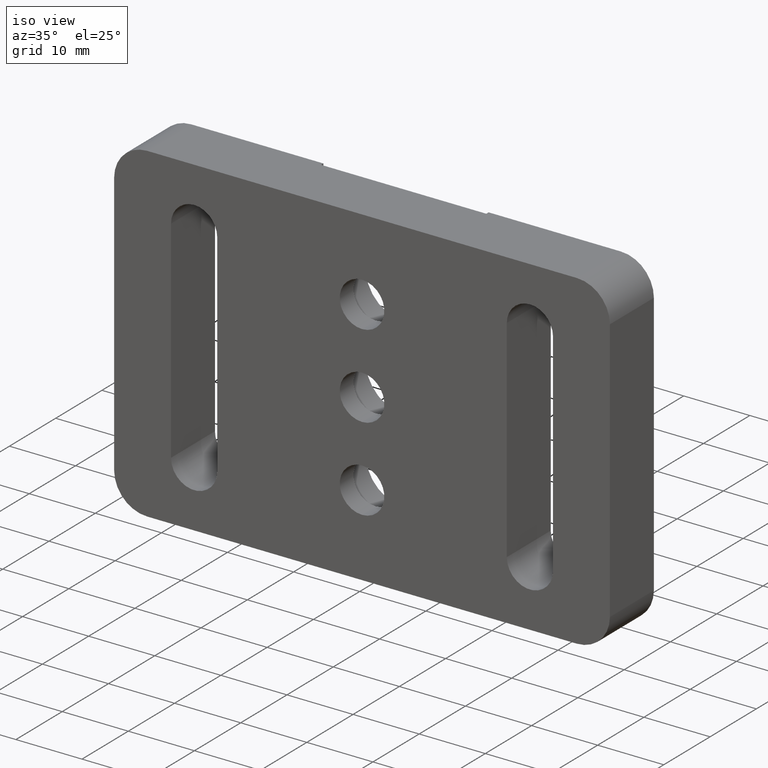
[diagram: clean part render]
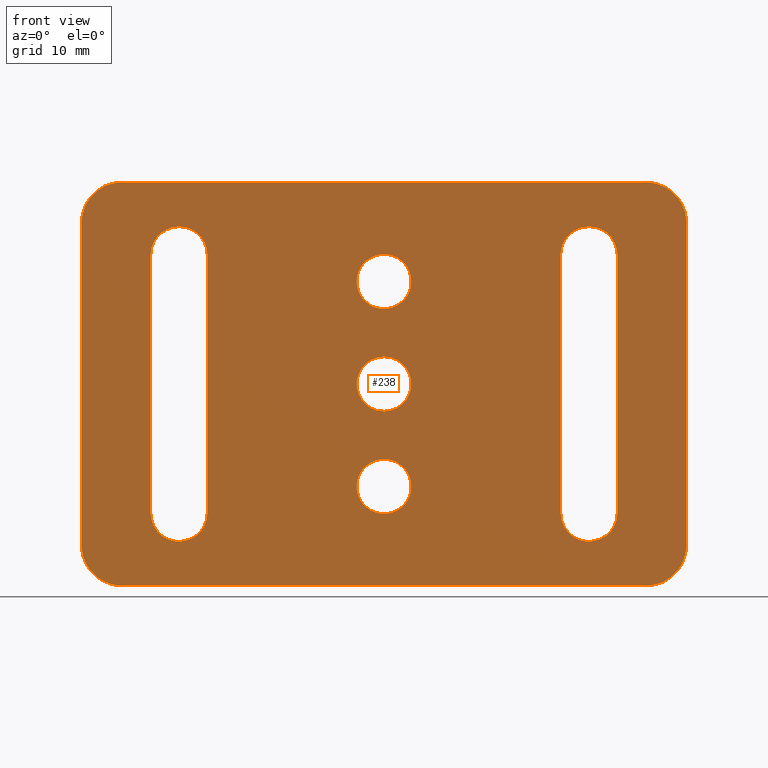
[diagram: tour spotlight — one face highlighted and labeled with its STEP entity id]
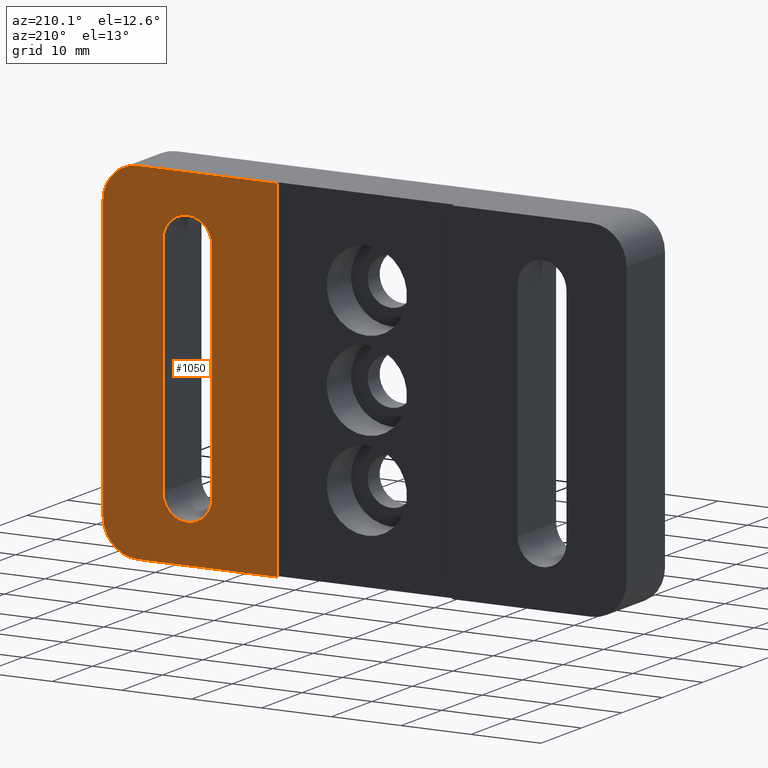
[diagram: tour spotlight — one face highlighted and labeled with its STEP entity id]
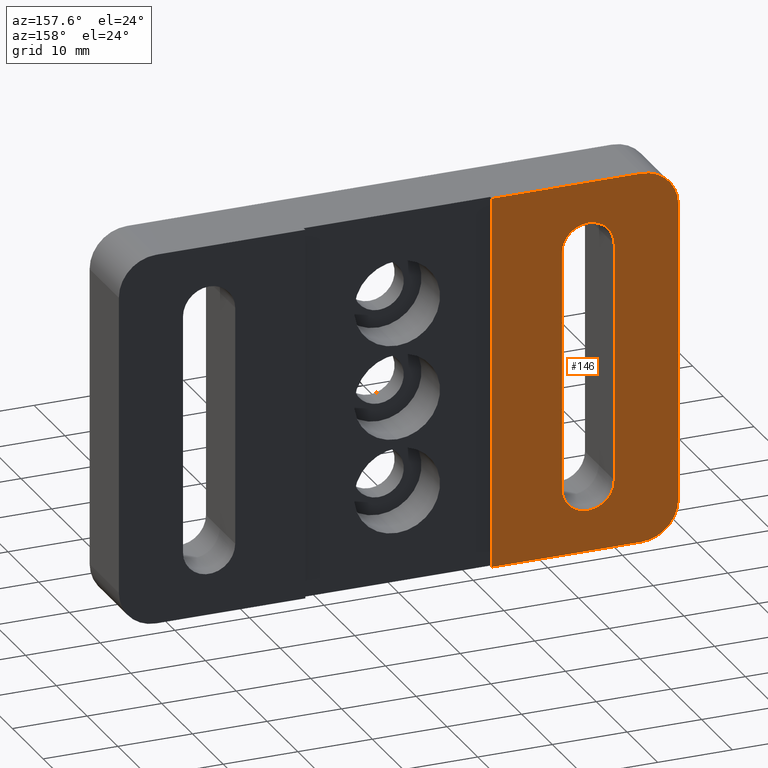
[diagram: tour spotlight — one face highlighted and labeled with its STEP entity id]
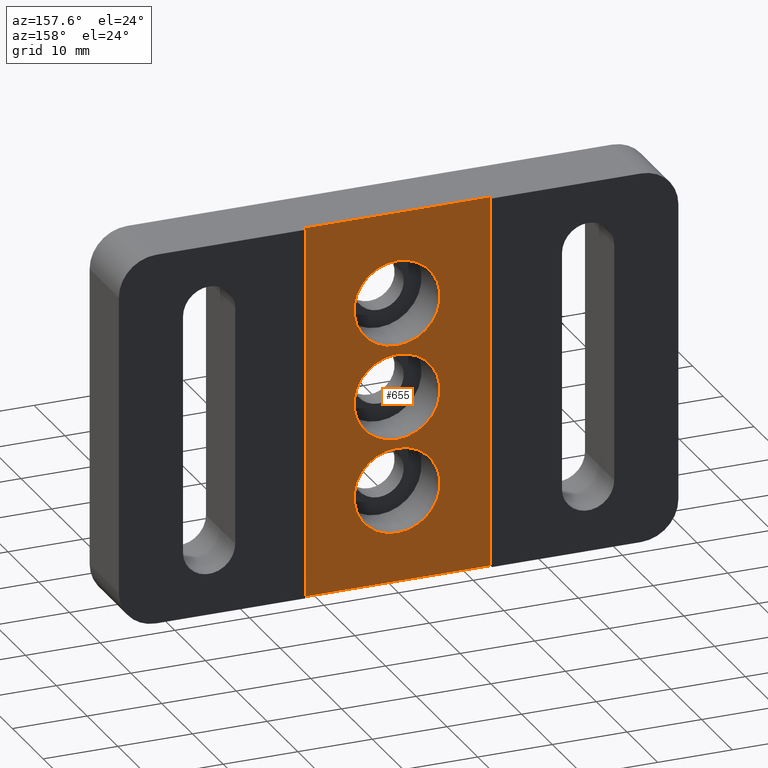
[diagram: tour spotlight — one face highlighted and labeled with its STEP entity id]
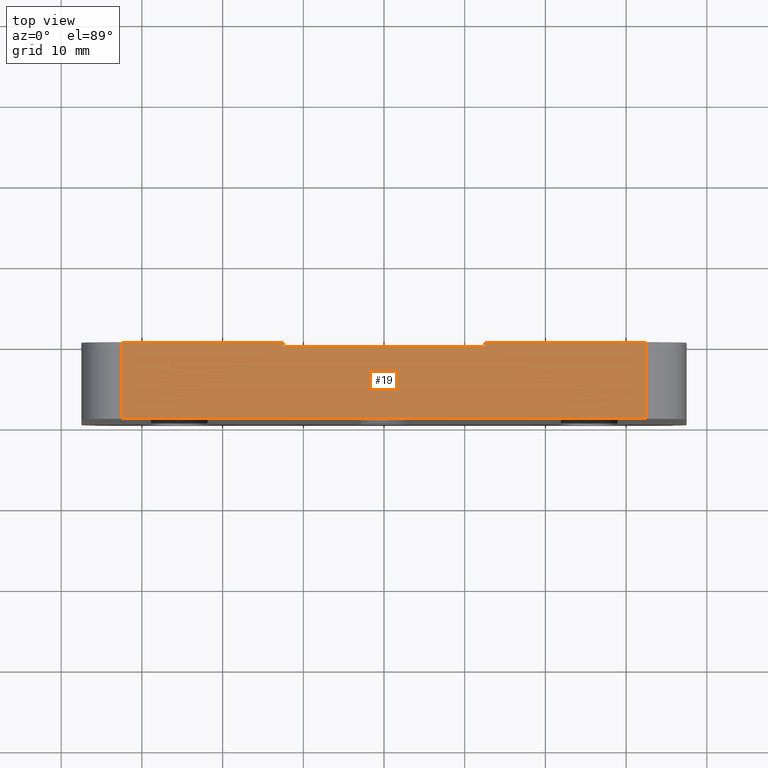
[diagram: tour spotlight — one face highlighted and labeled with its STEP entity id]
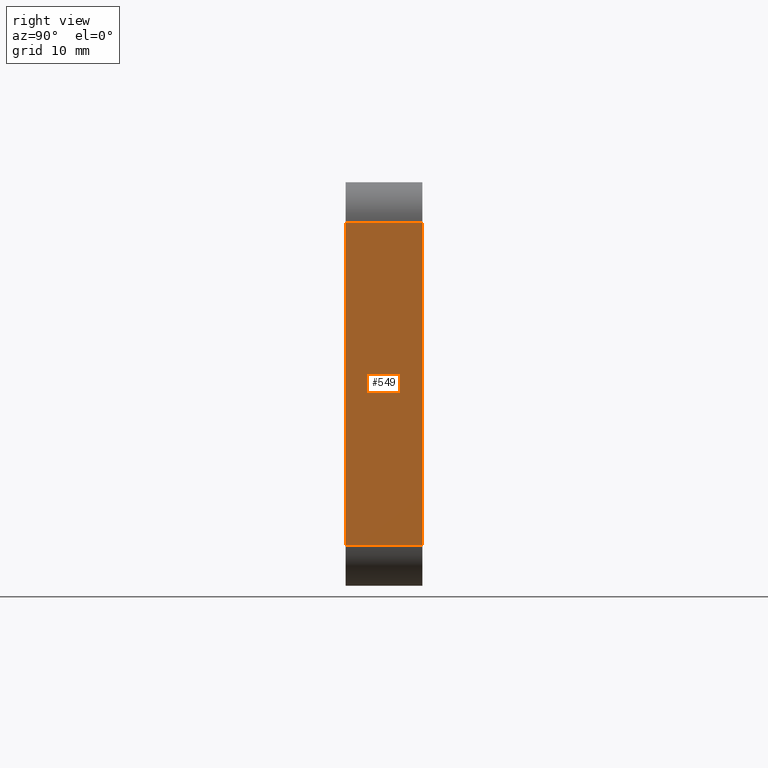
[diagram: tour spotlight — one face highlighted and labeled with its STEP entity id]
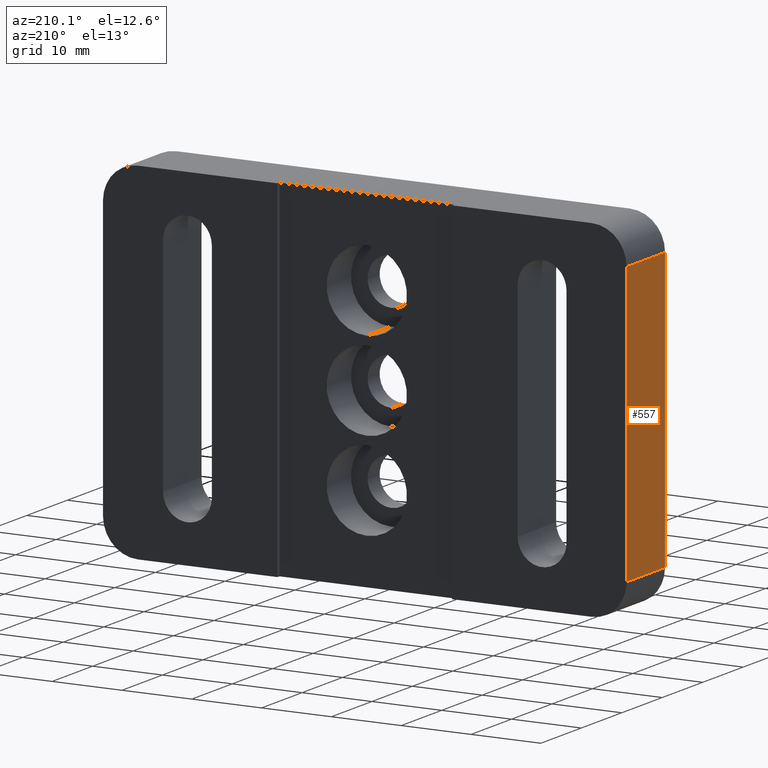
[diagram: tour spotlight — one face highlighted and labeled with its STEP entity id]
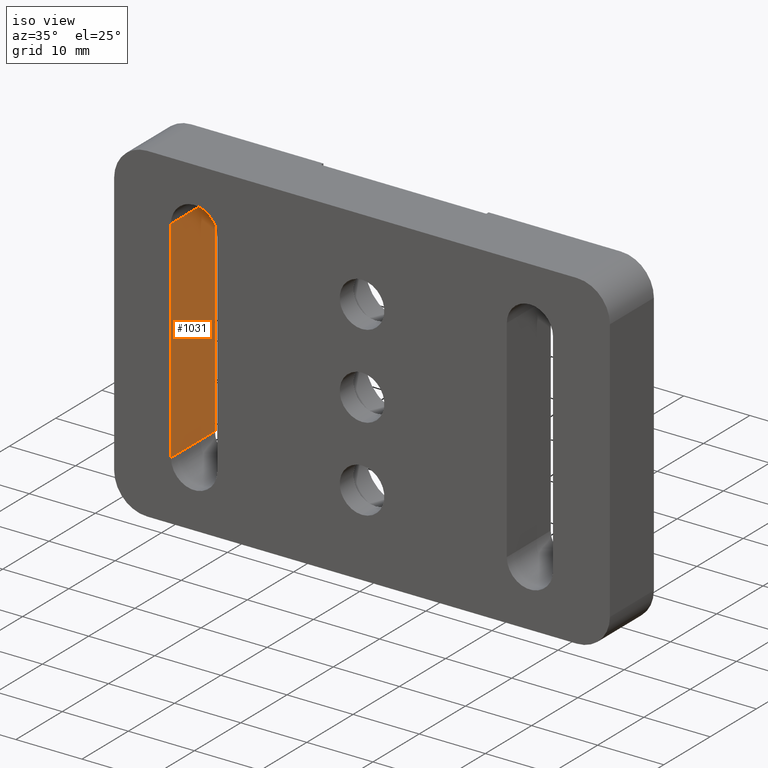
[diagram: tour spotlight — one face highlighted and labeled with its STEP entity id]
A machine part: a face-by-face anatomy tour. The part has 39 B-rep faces; the first image is the clean iso view, then the 8 largest visible faces are spotlighted one at a time (largest first), each with its STEP entity span.

Face 1 — front view, entity #238. In plain terms, the highlighted planar face has unit normal (0, 1, -0).
Definition (entity closure, byte-faithful):
#6 = DIRECTION ( 'NONE',  ( 0.0000000000000000000, 0.0000000000000000000, 1.000000000000000000 ) ) ;
#11 = LINE ( 'NONE', #825, #847 ) ;
#12 = DIRECTION ( 'NONE',  ( 0.0000000000000000000, 0.0000000000000000000, 1.000000000000000000 ) ) ;
#13 = LINE ( 'NONE', #435, #1080 ) ;
#15 = VECTOR ( 'NONE', #695, 1000.000000000000000 ) ;
#31 = EDGE_CURVE ( 'NONE', #167, #1086, #1175, .T. ) ;
#38 = EDGE_CURVE ( 'NONE', #562, #397, #1104, .T. ) ;
#45 = DIRECTION ( 'NONE',  ( 0.0000000000000000000, 0.0000000000000000000, 1.000000000000000000 ) ) ;
#57 = CARTESIAN_POINT ( 'NONE',  ( -21.89999999999999900, -9.500000000000000000, 16.00000000000000000 ) ) ;
#62 = ORIENTED_EDGE ( 'NONE', *, *, #1012, .T. ) ;
#76 = DIRECTION ( 'NONE',  ( -0.0000000000000000000, 1.000000000000000000, -0.0000000000000000000 ) ) ;
#82 = AXIS2_PLACEMENT_3D ( 'NONE', #269, #965, #756 ) ;
#87 = ORIENTED_EDGE ( 'NONE', *, *, #1302, .T. ) ;
#114 = FACE_BOUND ( 'NONE', #657, .T. ) ;
#131 = CARTESIAN_POINT ( 'NONE',  ( 32.50000000000001400, -9.500000000000000000, 25.00000000000000000 ) ) ;
#140 = ORIENTED_EDGE ( 'NONE', *, *, #567, .T. ) ;
#147 = VERTEX_POINT ( 'NONE', #555 ) ;
#167 = VERTEX_POINT ( 'NONE', #551 ) ;
#168 = LINE ( 'NONE', #794, #15 ) ;
#171 = CARTESIAN_POINT ( 'NONE',  ( -28.89999999999999900, -9.500000000000000000, -16.00000000000000000 ) ) ;
#176 = VERTEX_POINT ( 'NONE', #638 ) ;
#178 = LINE ( 'NONE', #303, #1074 ) ;
#186 = EDGE_CURVE ( 'NONE', #937, #229, #335, .T. ) ;
#189 = CIRCLE ( 'NONE', #644, 3.499999999999999600 ) ;
#198 = AXIS2_PLACEMENT_3D ( 'NONE', #831, #259, #45 ) ;
#204 = EDGE_CURVE ( 'NONE', #1126, #1242, #189, .T. ) ;
#208 = EDGE_CURVE ( 'NONE', #961, #553, #305, .T. ) ;
#213 = ORIENTED_EDGE ( 'NONE', *, *, #38, .F. ) ;
#217 = CARTESIAN_POINT ( 'NONE',  ( 0.0000000000000000000, -9.500000000000000000, -12.69999999999999900 ) ) ;
#229 = VERTEX_POINT ( 'NONE', #584 ) ;
#236 = AXIS2_PLACEMENT_3D ( 'NONE', #1254, #266, #478 ) ;
#237 = CARTESIAN_POINT ( 'NONE',  ( 0.0000000000000000000, -9.500000000000000000, -9.321800000000001400 ) ) ;
#238 = ADVANCED_FACE ( 'NONE', ( #114, #509, #1266, #423, #1300, #286 ), #1125, .F. ) ;
#242 = CIRCLE ( 'NONE', #392, 3.499999999999999600 ) ;
#258 = CARTESIAN_POINT ( 'NONE',  ( 4.137101816879587000E-016, -9.500000000000000000, -16.07819999999999900 ) ) ;
#259 = DIRECTION ( 'NONE',  ( 0.0000000000000000000, 1.000000000000000000, -0.0000000000000000000 ) ) ;
#260 = DIRECTION ( 'NONE',  ( 0.0000000000000000000, 1.000000000000000000, -0.0000000000000000000 ) ) ;
#266 = DIRECTION ( 'NONE',  ( -0.0000000000000000000, 1.000000000000000000, -0.0000000000000000000 ) ) ;
#269 = CARTESIAN_POINT ( 'NONE',  ( 32.50000000000002800, -9.500000000000000000, -20.00000000000000000 ) ) ;
#275 = EDGE_CURVE ( 'NONE', #1251, #879, #383, .T. ) ;
#286 = FACE_OUTER_BOUND ( 'NONE', #665, .T. ) ;
#289 = AXIS2_PLACEMENT_3D ( 'NONE', #550, #1229, #926 ) ;
#290 = CARTESIAN_POINT ( 'NONE',  ( -32.49999999999996400, -9.500000000000000000, -24.99999999999999300 ) ) ;
#299 = ORIENTED_EDGE ( 'NONE', *, *, #31, .T. ) ;
#303 = CARTESIAN_POINT ( 'NONE',  ( -70.25293966813804000, -9.500000000000000000, 24.99999999999998600 ) ) ;
#305 = CIRCLE ( 'NONE', #1098, 3.378199999999997900 ) ;
#326 = ORIENTED_EDGE ( 'NONE', *, *, #513, .F. ) ;
#335 = CIRCLE ( 'NONE', #594, 3.499999999999999600 ) ;
#344 = EDGE_CURVE ( 'NONE', #397, #176, #707, .T. ) ;
#345 = DIRECTION ( 'NONE',  ( -0.0000000000000000000, 1.000000000000000000, -0.0000000000000000000 ) ) ;
#353 = ORIENTED_EDGE ( 'NONE', *, *, #865, .T. ) ;
#356 = CARTESIAN_POINT ( 'NONE',  ( 21.90000000000000200, -9.500000000000000000, 15.99999999999998600 ) ) ;
#360 = VERTEX_POINT ( 'NONE', #849 ) ;
#361 = DIRECTION ( 'NONE',  ( 0.0000000000000000000, 0.0000000000000000000, 1.000000000000000000 ) ) ;
#367 = DIRECTION ( 'NONE',  ( 0.0000000000000000000, 0.0000000000000000000, 1.000000000000000000 ) ) ;
#369 = AXIS2_PLACEMENT_3D ( 'NONE', #217, #521, #525 ) ;
#380 = CARTESIAN_POINT ( 'NONE',  ( 25.39999999999999900, -9.500000000000000000, -16.00000000000000000 ) ) ;
#383 = CIRCLE ( 'NONE', #714, 3.378199999999997900 ) ;
#387 = CARTESIAN_POINT ( 'NONE',  ( 0.0000000000000000000, -9.500000000000000000, 16.07819999999999900 ) ) ;
#392 = AXIS2_PLACEMENT_3D ( 'NONE', #821, #813, #1022 ) ;
#397 = VERTEX_POINT ( 'NONE', #290 ) ;
#411 = CARTESIAN_POINT ( 'NONE',  ( -25.39999999999999900, -9.500000000000000000, 16.00000000000000000 ) ) ;
#423 = FACE_BOUND ( 'NONE', #1095, .T. ) ;
#431 = CARTESIAN_POINT ( 'NONE',  ( 25.39999999999999900, -9.500000000000000000, 19.49999999999998600 ) ) ;
#435 = CARTESIAN_POINT ( 'NONE',  ( -21.90000000000000200, -9.500000000000000000, 9.696484173239974200E-015 ) ) ;
#447 = EDGE_CURVE ( 'NONE', #1086, #360, #683, .T. ) ;
#478 = DIRECTION ( 'NONE',  ( 0.0000000000000000000, 0.0000000000000000000, 1.000000000000000000 ) ) ;
#480 = CARTESIAN_POINT ( 'NONE',  ( 0.0000000000000000000, -9.500000000000000000, 0.0000000000000000000 ) ) ;
#485 = EDGE_CURVE ( 'NONE', #176, #987, #793, .T. ) ;
#504 = CARTESIAN_POINT ( 'NONE',  ( -32.49999999999997200, -9.500000000000000000, 19.99999999999999300 ) ) ;
#506 = ORIENTED_EDGE ( 'NONE', *, *, #208, .T. ) ;
#507 = VERTEX_POINT ( 'NONE', #1101 ) ;
#509 = FACE_BOUND ( 'NONE', #510, .T. ) ;
#510 = EDGE_LOOP ( 'NONE', ( #1248, #299, #809, #1121, #600 ) ) ;
#513 = EDGE_CURVE ( 'NONE', #147, #575, #178, .T. ) ;
#521 = DIRECTION ( 'NONE',  ( -0.0000000000000000000, 1.000000000000000000, -0.0000000000000000000 ) ) ;
#525 = DIRECTION ( 'NONE',  ( 0.0000000000000000000, 0.0000000000000000000, 1.000000000000000000 ) ) ;
#528 = DIRECTION ( 'NONE',  ( 0.0000000000000000000, 0.0000000000000000000, -1.000000000000000000 ) ) ;
#533 = DIRECTION ( 'NONE',  ( -1.000000000000000000, 0.0000000000000000000, 1.067522139062650400E-016 ) ) ;
#536 = EDGE_CURVE ( 'NONE', #360, #1056, #242, .T. ) ;
#542 = EDGE_CURVE ( 'NONE', #1056, #1108, #722, .T. ) ;
#550 = CARTESIAN_POINT ( 'NONE',  ( 25.39999999999999900, -9.500000000000000000, 15.99999999999998600 ) ) ;
#551 = CARTESIAN_POINT ( 'NONE',  ( -21.89999999999999900, -9.500000000000000000, -16.00000000000000000 ) ) ;
#552 = CARTESIAN_POINT ( 'NONE',  ( -70.25293966813804000, -9.500000000000000000, 9.696484173239974200E-015 ) ) ;
#553 = VERTEX_POINT ( 'NONE', #730 ) ;
#555 = CARTESIAN_POINT ( 'NONE',  ( -32.49999999999997200, -9.500000000000000000, 24.99999999999998900 ) ) ;
#562 = VERTEX_POINT ( 'NONE', #1011 ) ;
#567 = EDGE_CURVE ( 'NONE', #553, #961, #917, .T. ) ;
#569 = EDGE_CURVE ( 'NONE', #1108, #167, #13, .T. ) ;
#575 = VERTEX_POINT ( 'NONE', #131 ) ;
#584 = CARTESIAN_POINT ( 'NONE',  ( 28.89999999999999900, -9.500000000000000000, 15.99999999999998600 ) ) ;
#594 = AXIS2_PLACEMENT_3D ( 'NONE', #680, #260, #361 ) ;
#596 = CARTESIAN_POINT ( 'NONE',  ( -37.49999999999996400, -9.500000000000000000, 9.696484173239974200E-015 ) ) ;
#600 = ORIENTED_EDGE ( 'NONE', *, *, #542, .T. ) ;
#604 = CARTESIAN_POINT ( 'NONE',  ( -28.89999999999999500, -9.500000000000000000, 9.696484173239974200E-015 ) ) ;
#607 = ORIENTED_EDGE ( 'NONE', *, *, #275, .T. ) ;
#611 = ORIENTED_EDGE ( 'NONE', *, *, #485, .F. ) ;
#615 = CIRCLE ( 'NONE', #872, 4.999999999999993800 ) ;
#618 = CARTESIAN_POINT ( 'NONE',  ( -70.25293966813804000, -9.500000000000000000, -24.99999999999998900 ) ) ;
#625 = CARTESIAN_POINT ( 'NONE',  ( 4.137101816879587000E-016, -9.500000000000000000, 9.321800000000001400 ) ) ;
#626 = EDGE_CURVE ( 'NONE', #507, #562, #801, .T. ) ;
#628 = DIRECTION ( 'NONE',  ( 0.0000000000000000000, 1.000000000000000000, -0.0000000000000000000 ) ) ;
#638 = CARTESIAN_POINT ( 'NONE',  ( -37.49999999999996400, -9.500000000000000000, -19.99999999999999300 ) ) ;
#644 = AXIS2_PLACEMENT_3D ( 'NONE', #380, #768, #367 ) ;
#656 = DIRECTION ( 'NONE',  ( 0.0000000000000000000, 1.000000000000000000, -0.0000000000000000000 ) ) ;
#657 = EDGE_LOOP ( 'NONE', ( #353, #1208, #970, #1146, #1123 ) ) ;
#661 = ORIENTED_EDGE ( 'NONE', *, *, #344, .F. ) ;
#662 = CARTESIAN_POINT ( 'NONE',  ( 0.0000000000000000000, -9.500000000000000000, 12.69999999999999900 ) ) ;
#665 = EDGE_LOOP ( 'NONE', ( #213, #1178, #692, #1055, #326, #948, #611, #661 ) ) ;
#680 = CARTESIAN_POINT ( 'NONE',  ( 25.39999999999999900, -9.500000000000000000, 15.99999999999998600 ) ) ;
#683 = LINE ( 'NONE', #604, #1059 ) ;
#687 = DIRECTION ( 'NONE',  ( 0.0000000000000000000, 0.0000000000000000000, 1.000000000000000000 ) ) ;
#692 = ORIENTED_EDGE ( 'NONE', *, *, #1135, .F. ) ;
#695 = DIRECTION ( 'NONE',  ( 0.0000000000000000000, 0.0000000000000000000, 1.000000000000000000 ) ) ;
#700 = LINE ( 'NONE', #992, #924 ) ;
#705 = CARTESIAN_POINT ( 'NONE',  ( 28.89999999999999900, -9.500000000000000000, -16.00000000000000000 ) ) ;
#707 = CIRCLE ( 'NONE', #905, 4.999999999999999100 ) ;
#714 = AXIS2_PLACEMENT_3D ( 'NONE', #662, #345, #1143 ) ;
#722 = CIRCLE ( 'NONE', #851, 3.499999999999999600 ) ;
#730 = CARTESIAN_POINT ( 'NONE',  ( 4.137101816879586500E-016, -9.500000000000000000, -3.378199999999997900 ) ) ;
#733 = DIRECTION ( 'NONE',  ( 0.0000000000000000000, 1.000000000000000000, -0.0000000000000000000 ) ) ;
#739 = VERTEX_POINT ( 'NONE', #356 ) ;
#748 = CARTESIAN_POINT ( 'NONE',  ( 0.0000000000000000000, -9.500000000000000000, 0.0000000000000000000 ) ) ;
#756 = DIRECTION ( 'NONE',  ( 0.0000000000000000000, 0.0000000000000000000, 1.000000000000000000 ) ) ;
#767 = AXIS2_PLACEMENT_3D ( 'NONE', #552, #628, #12 ) ;
#768 = DIRECTION ( 'NONE',  ( 0.0000000000000000000, 1.000000000000000000, -0.0000000000000000000 ) ) ;
#793 = LINE ( 'NONE', #596, #1096 ) ;
#794 = CARTESIAN_POINT ( 'NONE',  ( 21.90000000000000200, -9.500000000000000000, 9.696484173239974200E-015 ) ) ;
#801 = CIRCLE ( 'NONE', #82, 4.999999999999995600 ) ;
#809 = ORIENTED_EDGE ( 'NONE', *, *, #447, .T. ) ;
#811 = VERTEX_POINT ( 'NONE', #991 ) ;
#812 = CIRCLE ( 'NONE', #198, 4.999999999999997300 ) ;
#813 = DIRECTION ( 'NONE',  ( 0.0000000000000000000, 1.000000000000000000, -0.0000000000000000000 ) ) ;
#821 = CARTESIAN_POINT ( 'NONE',  ( -25.39999999999999900, -9.500000000000000000, 16.00000000000000000 ) ) ;
#825 = CARTESIAN_POINT ( 'NONE',  ( 37.50000000000002100, -9.500000000000000000, 9.696484173239974200E-015 ) ) ;
#831 = CARTESIAN_POINT ( 'NONE',  ( 32.50000000000002100, -9.500000000000000000, 20.00000000000000400 ) ) ;
#833 = CIRCLE ( 'NONE', #369, 3.378199999999997900 ) ;
#845 = DIRECTION ( 'NONE',  ( -0.0000000000000000000, 1.000000000000000000, -0.0000000000000000000 ) ) ;
#847 = VECTOR ( 'NONE', #528, 1000.000000000000000 ) ;
#849 = CARTESIAN_POINT ( 'NONE',  ( -28.89999999999999500, -9.500000000000000000, 16.00000000000000000 ) ) ;
#851 = AXIS2_PLACEMENT_3D ( 'NONE', #411, #1218, #6 ) ;
#857 = VECTOR ( 'NONE', #533, 1000.000000000000000 ) ;
#865 = EDGE_CURVE ( 'NONE', #229, #1126, #700, .T. ) ;
#872 = AXIS2_PLACEMENT_3D ( 'NONE', #504, #1186, #898 ) ;
#879 = VERTEX_POINT ( 'NONE', #625 ) ;
#880 = DIRECTION ( 'NONE',  ( 0.0000000000000000000, 0.0000000000000000000, 1.000000000000000000 ) ) ;
#882 = CARTESIAN_POINT ( 'NONE',  ( 21.89999999999999900, -9.500000000000000000, -16.00000000000000000 ) ) ;
#896 = EDGE_CURVE ( 'NONE', #987, #147, #615, .T. ) ;
#898 = DIRECTION ( 'NONE',  ( 0.0000000000000000000, 0.0000000000000000000, 1.000000000000000000 ) ) ;
#905 = AXIS2_PLACEMENT_3D ( 'NONE', #1249, #656, #956 ) ;
#914 = DIRECTION ( 'NONE',  ( 0.0000000000000000000, 0.0000000000000000000, 1.000000000000000000 ) ) ;
#917 = CIRCLE ( 'NONE', #1319, 3.378199999999997900 ) ;
#924 = VECTOR ( 'NONE', #1290, 1000.000000000000000 ) ;
#926 = DIRECTION ( 'NONE',  ( 0.0000000000000000000, 0.0000000000000000000, 1.000000000000000000 ) ) ;
#931 = AXIS2_PLACEMENT_3D ( 'NONE', #1112, #733, #914 ) ;
#937 = VERTEX_POINT ( 'NONE', #431 ) ;
#939 = CARTESIAN_POINT ( 'NONE',  ( -37.49999999999996400, -9.500000000000000000, 19.99999999999999300 ) ) ;
#948 = ORIENTED_EDGE ( 'NONE', *, *, #896, .F. ) ;
#956 = DIRECTION ( 'NONE',  ( 0.0000000000000000000, 0.0000000000000000000, 1.000000000000000000 ) ) ;
#961 = VERTEX_POINT ( 'NONE', #1215 ) ;
#965 = DIRECTION ( 'NONE',  ( 0.0000000000000000000, 1.000000000000000000, -0.0000000000000000000 ) ) ;
#970 = ORIENTED_EDGE ( 'NONE', *, *, #1267, .T. ) ;
#973 = DIRECTION ( 'NONE',  ( -0.0000000000000000000, 1.000000000000000000, -0.0000000000000000000 ) ) ;
#981 = CIRCLE ( 'NONE', #289, 3.499999999999999600 ) ;
#986 = VERTEX_POINT ( 'NONE', #237 ) ;
#987 = VERTEX_POINT ( 'NONE', #939 ) ;
#991 = CARTESIAN_POINT ( 'NONE',  ( 37.50000000000002100, -9.500000000000000000, 20.00000000000000400 ) ) ;
#992 = CARTESIAN_POINT ( 'NONE',  ( 28.89999999999999500, -9.500000000000000000, 9.696484173239974200E-015 ) ) ;
#1002 = CARTESIAN_POINT ( 'NONE',  ( 0.0000000000000000000, -9.500000000000000000, -12.69999999999999900 ) ) ;
#1005 = ORIENTED_EDGE ( 'NONE', *, *, #1116, .T. ) ;
#1011 = CARTESIAN_POINT ( 'NONE',  ( 32.50000000000002800, -9.500000000000000000, -25.00000000000000000 ) ) ;
#1012 = EDGE_CURVE ( 'NONE', #879, #1251, #1149, .T. ) ;
#1018 = AXIS2_PLACEMENT_3D ( 'NONE', #1002, #76, #1187 ) ;
#1022 = DIRECTION ( 'NONE',  ( 0.0000000000000000000, 0.0000000000000000000, 1.000000000000000000 ) ) ;
#1024 = VERTEX_POINT ( 'NONE', #258 ) ;
#1039 = DIRECTION ( 'NONE',  ( 0.0000000000000000000, 0.0000000000000000000, 1.000000000000000000 ) ) ;
#1055 = ORIENTED_EDGE ( 'NONE', *, *, #1211, .F. ) ;
#1056 = VERTEX_POINT ( 'NONE', #1167 ) ;
#1059 = VECTOR ( 'NONE', #880, 1000.000000000000000 ) ;
#1074 = VECTOR ( 'NONE', #1316, 1000.000000000000000 ) ;
#1080 = VECTOR ( 'NONE', #1246, 1000.000000000000000 ) ;
#1086 = VERTEX_POINT ( 'NONE', #171 ) ;
#1095 = EDGE_LOOP ( 'NONE', ( #506, #140 ) ) ;
#1096 = VECTOR ( 'NONE', #687, 1000.000000000000000 ) ;
#1098 = AXIS2_PLACEMENT_3D ( 'NONE', #480, #973, #1152 ) ;
#1101 = CARTESIAN_POINT ( 'NONE',  ( 37.50000000000002100, -9.500000000000000000, -20.00000000000000000 ) ) ;
#1104 = LINE ( 'NONE', #618, #857 ) ;
#1108 = VERTEX_POINT ( 'NONE', #57 ) ;
#1112 = CARTESIAN_POINT ( 'NONE',  ( -25.39999999999999900, -9.500000000000000000, -16.00000000000000000 ) ) ;
#1116 = EDGE_CURVE ( 'NONE', #986, #1024, #1185, .T. ) ;
#1121 = ORIENTED_EDGE ( 'NONE', *, *, #536, .T. ) ;
#1123 = ORIENTED_EDGE ( 'NONE', *, *, #186, .T. ) ;
#1125 = PLANE ( 'NONE',  #767 ) ;
#1126 = VERTEX_POINT ( 'NONE', #705 ) ;
#1135 = EDGE_CURVE ( 'NONE', #811, #507, #11, .T. ) ;
#1143 = DIRECTION ( 'NONE',  ( 0.0000000000000000000, 0.0000000000000000000, 1.000000000000000000 ) ) ;
#1144 = EDGE_LOOP ( 'NONE', ( #607, #62 ) ) ;
#1146 = ORIENTED_EDGE ( 'NONE', *, *, #1177, .T. ) ;
#1149 = CIRCLE ( 'NONE', #236, 3.378199999999997900 ) ;
#1152 = DIRECTION ( 'NONE',  ( 0.0000000000000000000, 0.0000000000000000000, 1.000000000000000000 ) ) ;
#1167 = CARTESIAN_POINT ( 'NONE',  ( -25.39999999999999900, -9.500000000000000000, 19.50000000000000000 ) ) ;
#1175 = CIRCLE ( 'NONE', #931, 3.499999999999999600 ) ;
#1177 = EDGE_CURVE ( 'NONE', #739, #937, #981, .T. ) ;
#1178 = ORIENTED_EDGE ( 'NONE', *, *, #626, .F. ) ;
#1185 = CIRCLE ( 'NONE', #1018, 3.378199999999997900 ) ;
#1186 = DIRECTION ( 'NONE',  ( 0.0000000000000000000, 1.000000000000000000, -0.0000000000000000000 ) ) ;
#1187 = DIRECTION ( 'NONE',  ( 0.0000000000000000000, 0.0000000000000000000, 1.000000000000000000 ) ) ;
#1208 = ORIENTED_EDGE ( 'NONE', *, *, #204, .T. ) ;
#1211 = EDGE_CURVE ( 'NONE', #575, #811, #812, .T. ) ;
#1215 = CARTESIAN_POINT ( 'NONE',  ( 0.0000000000000000000, -9.500000000000000000, 3.378199999999997900 ) ) ;
#1218 = DIRECTION ( 'NONE',  ( 0.0000000000000000000, 1.000000000000000000, -0.0000000000000000000 ) ) ;
#1229 = DIRECTION ( 'NONE',  ( 0.0000000000000000000, 1.000000000000000000, -0.0000000000000000000 ) ) ;
#1242 = VERTEX_POINT ( 'NONE', #882 ) ;
#1246 = DIRECTION ( 'NONE',  ( 0.0000000000000000000, 0.0000000000000000000, -1.000000000000000000 ) ) ;
#1248 = ORIENTED_EDGE ( 'NONE', *, *, #569, .T. ) ;
#1249 = CARTESIAN_POINT ( 'NONE',  ( -32.49999999999996400, -9.500000000000000000, -19.99999999999999300 ) ) ;
#1251 = VERTEX_POINT ( 'NONE', #387 ) ;
#1254 = CARTESIAN_POINT ( 'NONE',  ( 0.0000000000000000000, -9.500000000000000000, 12.69999999999999900 ) ) ;
#1266 = FACE_BOUND ( 'NONE', #1301, .T. ) ;
#1267 = EDGE_CURVE ( 'NONE', #1242, #739, #168, .T. ) ;
#1290 = DIRECTION ( 'NONE',  ( 0.0000000000000000000, 0.0000000000000000000, -1.000000000000000000 ) ) ;
#1300 = FACE_BOUND ( 'NONE', #1144, .T. ) ;
#1301 = EDGE_LOOP ( 'NONE', ( #1005, #87 ) ) ;
#1302 = EDGE_CURVE ( 'NONE', #1024, #986, #833, .T. ) ;
#1316 = DIRECTION ( 'NONE',  ( 1.000000000000000000, 0.0000000000000000000, 1.601283208593975300E-016 ) ) ;
#1319 = AXIS2_PLACEMENT_3D ( 'NONE', #748, #845, #1039 ) ;

Face 2 — auxiliary view, entity #1050. In plain terms, the highlighted planar face has unit normal (0, 1, -0).
Definition (entity closure, byte-faithful):
#3 = CARTESIAN_POINT ( 'NONE',  ( 32.50000000000002800, 0.0000000000000000000, -25.00000000000000000 ) ) ;
#50 = VECTOR ( 'NONE', #90, 1000.000000000000000 ) ;
#90 = DIRECTION ( 'NONE',  ( 1.000000000000000000, 0.0000000000000000000, 1.601283208593975300E-016 ) ) ;
#107 = DIRECTION ( 'NONE',  ( 0.0000000000000000000, 0.0000000000000000000, -1.000000000000000000 ) ) ;
#115 = CARTESIAN_POINT ( 'NONE',  ( 32.50000000000001400, 0.0000000000000000000, 25.00000000000000000 ) ) ;
#117 = VERTEX_POINT ( 'NONE', #115 ) ;
#122 = DIRECTION ( 'NONE',  ( 0.0000000000000000000, 0.0000000000000000000, -1.000000000000000000 ) ) ;
#128 = VECTOR ( 'NONE', #729, 1000.000000000000000 ) ;
#136 = DIRECTION ( 'NONE',  ( 0.0000000000000000000, 1.000000000000000000, 0.0000000000000000000 ) ) ;
#139 = DIRECTION ( 'NONE',  ( 0.0000000000000000000, 1.000000000000000000, -0.0000000000000000000 ) ) ;
#145 = CARTESIAN_POINT ( 'NONE',  ( -70.25293966813804000, 0.0000000000000000000, 9.696484173239974200E-015 ) ) ;
#158 = ORIENTED_EDGE ( 'NONE', *, *, #901, .T. ) ;
#166 = VECTOR ( 'NONE', #107, 1000.000000000000000 ) ;
#185 = CARTESIAN_POINT ( 'NONE',  ( 37.50000000000002100, 0.0000000000000000000, 9.696484173239974200E-015 ) ) ;
#200 = LINE ( 'NONE', #1115, #128 ) ;
#252 = CARTESIAN_POINT ( 'NONE',  ( -70.25293966813804000, 0.0000000000000000000, -24.99999999999998900 ) ) ;
#256 = AXIS2_PLACEMENT_3D ( 'NONE', #145, #139, #355 ) ;
#272 = VERTEX_POINT ( 'NONE', #828 ) ;
#274 = DIRECTION ( 'NONE',  ( -1.000000000000000000, 0.0000000000000000000, 1.067522139062650400E-016 ) ) ;
#277 = VECTOR ( 'NONE', #884, 1000.000000000000000 ) ;
#314 = ORIENTED_EDGE ( 'NONE', *, *, #1142, .F. ) ;
#327 = AXIS2_PLACEMENT_3D ( 'NONE', #1052, #681, #860 ) ;
#332 = EDGE_CURVE ( 'NONE', #743, #446, #988, .T. ) ;
#351 = CARTESIAN_POINT ( 'NONE',  ( 21.89999999999999900, 0.0000000000000000000, 15.99999999999998600 ) ) ;
#355 = DIRECTION ( 'NONE',  ( 0.0000000000000000000, 0.0000000000000000000, 1.000000000000000000 ) ) ;
#376 = ORIENTED_EDGE ( 'NONE', *, *, #524, .F. ) ;
#388 = VERTEX_POINT ( 'NONE', #765 ) ;
#396 = VERTEX_POINT ( 'NONE', #351 ) ;
#409 = VERTEX_POINT ( 'NONE', #1268 ) ;
#420 = DIRECTION ( 'NONE',  ( -0.0000000000000000000, -0.0000000000000000000, -1.000000000000000000 ) ) ;
#421 = ORIENTED_EDGE ( 'NONE', *, *, #1292, .T. ) ;
#446 = VERTEX_POINT ( 'NONE', #786 ) ;
#460 = ORIENTED_EDGE ( 'NONE', *, *, #816, .F. ) ;
#463 = CARTESIAN_POINT ( 'NONE',  ( 21.89999999999999900, 0.0000000000000000000, -16.00000000000000000 ) ) ;
#464 = VERTEX_POINT ( 'NONE', #488 ) ;
#476 = AXIS2_PLACEMENT_3D ( 'NONE', #1153, #769, #568 ) ;
#484 = CARTESIAN_POINT ( 'NONE',  ( 12.49999999999997200, 0.0000000000000000000, -24.99999999999998900 ) ) ;
#488 = CARTESIAN_POINT ( 'NONE',  ( 28.89999999999999900, 0.0000000000000000000, 15.99999999999998600 ) ) ;
#500 = CIRCLE ( 'NONE', #327, 4.999999999999995600 ) ;
#516 = LINE ( 'NONE', #814, #50 ) ;
#519 = EDGE_LOOP ( 'NONE', ( #1043, #421, #158, #537, #1033, #1103 ) ) ;
#520 = LINE ( 'NONE', #1009, #843 ) ;
#523 = CIRCLE ( 'NONE', #691, 3.499999999999999600 ) ;
#524 = EDGE_CURVE ( 'NONE', #464, #743, #520, .T. ) ;
#537 = ORIENTED_EDGE ( 'NONE', *, *, #870, .T. ) ;
#540 = CARTESIAN_POINT ( 'NONE',  ( 25.39999999999999900, 0.0000000000000000000, 15.99999999999998600 ) ) ;
#568 = DIRECTION ( 'NONE',  ( 0.0000000000000000000, 0.0000000000000000000, -1.000000000000000000 ) ) ;
#578 = PLANE ( 'NONE',  #256 ) ;
#602 = CIRCLE ( 'NONE', #476, 3.499999999999999600 ) ;
#647 = LINE ( 'NONE', #185, #166 ) ;
#652 = EDGE_CURVE ( 'NONE', #1145, #1233, #1199, .T. ) ;
#681 = DIRECTION ( 'NONE',  ( 0.0000000000000000000, 1.000000000000000000, -0.0000000000000000000 ) ) ;
#686 = VECTOR ( 'NONE', #274, 1000.000000000000000 ) ;
#691 = AXIS2_PLACEMENT_3D ( 'NONE', #540, #747, #122 ) ;
#697 = EDGE_CURVE ( 'NONE', #272, #464, #602, .T. ) ;
#699 = AXIS2_PLACEMENT_3D ( 'NONE', #967, #136, #758 ) ;
#720 = VERTEX_POINT ( 'NONE', #1272 ) ;
#725 = CARTESIAN_POINT ( 'NONE',  ( 32.50000000000002100, 0.0000000000000000000, 20.00000000000000400 ) ) ;
#729 = DIRECTION ( 'NONE',  ( 3.469446951953615400E-017, 0.0000000000000000000, -1.000000000000000000 ) ) ;
#734 = EDGE_CURVE ( 'NONE', #388, #1145, #500, .T. ) ;
#743 = VERTEX_POINT ( 'NONE', #1148 ) ;
#747 = DIRECTION ( 'NONE',  ( 0.0000000000000000000, 1.000000000000000000, -0.0000000000000000000 ) ) ;
#758 = DIRECTION ( 'NONE',  ( 0.0000000000000000000, 0.0000000000000000000, 1.000000000000000000 ) ) ;
#765 = CARTESIAN_POINT ( 'NONE',  ( 37.50000000000002100, 0.0000000000000000000, -20.00000000000000000 ) ) ;
#769 = DIRECTION ( 'NONE',  ( 0.0000000000000000000, 1.000000000000000000, -0.0000000000000000000 ) ) ;
#786 = CARTESIAN_POINT ( 'NONE',  ( 21.90000000000000200, 0.0000000000000000000, -16.00000000000000000 ) ) ;
#796 = DIRECTION ( 'NONE',  ( 0.0000000000000000000, 0.0000000000000000000, 1.000000000000000000 ) ) ;
#814 = CARTESIAN_POINT ( 'NONE',  ( -70.25293966813804000, 0.0000000000000000000, 24.99999999999998600 ) ) ;
#815 = DIRECTION ( 'NONE',  ( 0.0000000000000000000, 1.000000000000000000, -0.0000000000000000000 ) ) ;
#816 = EDGE_CURVE ( 'NONE', #446, #396, #908, .T. ) ;
#828 = CARTESIAN_POINT ( 'NONE',  ( 25.39999999999999900, 0.0000000000000000000, 19.49999999999998600 ) ) ;
#843 = VECTOR ( 'NONE', #420, 1000.000000000000000 ) ;
#860 = DIRECTION ( 'NONE',  ( 0.0000000000000000000, 0.0000000000000000000, 1.000000000000000000 ) ) ;
#870 = EDGE_CURVE ( 'NONE', #720, #388, #647, .T. ) ;
#884 = DIRECTION ( 'NONE',  ( 0.0000000000000000000, 0.0000000000000000000, 1.000000000000000000 ) ) ;
#901 = EDGE_CURVE ( 'NONE', #117, #720, #938, .T. ) ;
#908 = LINE ( 'NONE', #463, #277 ) ;
#932 = AXIS2_PLACEMENT_3D ( 'NONE', #725, #815, #796 ) ;
#938 = CIRCLE ( 'NONE', #932, 4.999999999999997300 ) ;
#967 = CARTESIAN_POINT ( 'NONE',  ( 25.39999999999999900, 0.0000000000000000000, -16.00000000000000000 ) ) ;
#988 = CIRCLE ( 'NONE', #699, 3.499999999999999600 ) ;
#1009 = CARTESIAN_POINT ( 'NONE',  ( 28.89999999999999900, 0.0000000000000000000, -16.00000000000000000 ) ) ;
#1033 = ORIENTED_EDGE ( 'NONE', *, *, #734, .T. ) ;
#1043 = ORIENTED_EDGE ( 'NONE', *, *, #1170, .F. ) ;
#1050 = ADVANCED_FACE ( 'NONE', ( #1130, #1234 ), #578, .T. ) ;
#1052 = CARTESIAN_POINT ( 'NONE',  ( 32.50000000000002800, 0.0000000000000000000, -20.00000000000000000 ) ) ;
#1103 = ORIENTED_EDGE ( 'NONE', *, *, #652, .T. ) ;
#1115 = CARTESIAN_POINT ( 'NONE',  ( 12.49999999999997000, 0.0000000000000000000, 24.99999999999998900 ) ) ;
#1130 = FACE_BOUND ( 'NONE', #1247, .T. ) ;
#1142 = EDGE_CURVE ( 'NONE', #396, #272, #523, .T. ) ;
#1145 = VERTEX_POINT ( 'NONE', #3 ) ;
#1148 = CARTESIAN_POINT ( 'NONE',  ( 28.89999999999999900, 0.0000000000000000000, -16.00000000000000000 ) ) ;
#1153 = CARTESIAN_POINT ( 'NONE',  ( 25.39999999999999900, 0.0000000000000000000, 15.99999999999998600 ) ) ;
#1170 = EDGE_CURVE ( 'NONE', #409, #1233, #200, .T. ) ;
#1198 = ORIENTED_EDGE ( 'NONE', *, *, #697, .F. ) ;
#1199 = LINE ( 'NONE', #252, #686 ) ;
#1233 = VERTEX_POINT ( 'NONE', #484 ) ;
#1234 = FACE_OUTER_BOUND ( 'NONE', #519, .T. ) ;
#1247 = EDGE_LOOP ( 'NONE', ( #1286, #376, #1198, #314, #460 ) ) ;
#1268 = CARTESIAN_POINT ( 'NONE',  ( 12.49999999999997000, 0.0000000000000000000, 24.99999999999999600 ) ) ;
#1272 = CARTESIAN_POINT ( 'NONE',  ( 37.50000000000002100, 0.0000000000000000000, 20.00000000000000400 ) ) ;
#1286 = ORIENTED_EDGE ( 'NONE', *, *, #332, .F. ) ;
#1292 = EDGE_CURVE ( 'NONE', #409, #117, #516, .T. ) ;

Face 3 — auxiliary view, entity #146. In plain terms, the highlighted planar face has unit normal (0, 1, -0).
Definition (entity closure, byte-faithful):
#18 = EDGE_CURVE ( 'NONE', #1016, #212, #1203, .T. ) ;
#21 = CARTESIAN_POINT ( 'NONE',  ( -25.39999999999999900, 0.0000000000000000000, 19.50000000000000000 ) ) ;
#34 = PLANE ( 'NONE',  #1066 ) ;
#37 = VECTOR ( 'NONE', #108, 1000.000000000000000 ) ;
#39 = CARTESIAN_POINT ( 'NONE',  ( -25.39999999999999900, 0.0000000000000000000, 16.00000000000000000 ) ) ;
#40 = DIRECTION ( 'NONE',  ( 0.0000000000000000000, 0.0000000000000000000, 1.000000000000000000 ) ) ;
#41 = CARTESIAN_POINT ( 'NONE',  ( -28.89999999999999500, 0.0000000000000000000, -16.00000000000000000 ) ) ;
#43 = EDGE_CURVE ( 'NONE', #99, #531, #319, .T. ) ;
#55 = ORIENTED_EDGE ( 'NONE', *, *, #211, .F. ) ;
#70 = EDGE_CURVE ( 'NONE', #952, #721, #135, .T. ) ;
#99 = VERTEX_POINT ( 'NONE', #762 ) ;
#100 = AXIS2_PLACEMENT_3D ( 'NONE', #39, #572, #471 ) ;
#103 = DIRECTION ( 'NONE',  ( 3.122502256758253800E-016, -0.0000000000000000000, 1.000000000000000000 ) ) ;
#108 = DIRECTION ( 'NONE',  ( -1.000000000000000000, 0.0000000000000000000, 1.067522139062650400E-016 ) ) ;
#111 = CARTESIAN_POINT ( 'NONE',  ( -21.89999999999999900, 0.0000000000000000000, -16.00000000000000000 ) ) ;
#113 = DIRECTION ( 'NONE',  ( 0.0000000000000000000, 1.000000000000000000, -0.0000000000000000000 ) ) ;
#127 = VECTOR ( 'NONE', #177, 1000.000000000000000 ) ;
#130 = CARTESIAN_POINT ( 'NONE',  ( -70.25293966813804000, 0.0000000000000000000, 9.696484173239974200E-015 ) ) ;
#135 = CIRCLE ( 'NONE', #1296, 3.499999999999999600 ) ;
#146 = ADVANCED_FACE ( 'NONE', ( #1092, #704 ), #34, .T. ) ;
#163 = EDGE_CURVE ( 'NONE', #582, #952, #477, .T. ) ;
#174 = VERTEX_POINT ( 'NONE', #21 ) ;
#177 = DIRECTION ( 'NONE',  ( 0.0000000000000000000, 0.0000000000000000000, 1.000000000000000000 ) ) ;
#192 = CIRCLE ( 'NONE', #673, 4.999999999999999100 ) ;
#205 = VECTOR ( 'NONE', #632, 1000.000000000000000 ) ;
#211 = EDGE_CURVE ( 'NONE', #772, #174, #436, .T. ) ;
#212 = VERTEX_POINT ( 'NONE', #976 ) ;
#221 = CARTESIAN_POINT ( 'NONE',  ( -32.49999999999997200, 0.0000000000000000000, 24.99999999999998900 ) ) ;
#227 = DIRECTION ( 'NONE',  ( 0.0000000000000000000, 0.0000000000000000000, -1.000000000000000000 ) ) ;
#251 = DIRECTION ( 'NONE',  ( 0.0000000000000000000, 0.0000000000000000000, 1.000000000000000000 ) ) ;
#267 = ORIENTED_EDGE ( 'NONE', *, *, #18, .T. ) ;
#319 = LINE ( 'NONE', #1217, #37 ) ;
#325 = EDGE_CURVE ( 'NONE', #531, #1016, #192, .T. ) ;
#328 = CARTESIAN_POINT ( 'NONE',  ( -12.49999999999996600, 0.0000000000000000000, 24.99999999999999300 ) ) ;
#339 = CARTESIAN_POINT ( 'NONE',  ( -37.49999999999996400, 0.0000000000000000000, -19.99999999999999300 ) ) ;
#341 = ORIENTED_EDGE ( 'NONE', *, *, #620, .T. ) ;
#373 = CARTESIAN_POINT ( 'NONE',  ( -25.39999999999999900, 0.0000000000000000000, 16.00000000000000000 ) ) ;
#430 = ORIENTED_EDGE ( 'NONE', *, *, #799, .F. ) ;
#436 = CIRCLE ( 'NONE', #984, 3.499999999999999600 ) ;
#440 = ORIENTED_EDGE ( 'NONE', *, *, #1114, .T. ) ;
#445 = DIRECTION ( 'NONE',  ( 0.0000000000000000000, 1.000000000000000000, -0.0000000000000000000 ) ) ;
#471 = DIRECTION ( 'NONE',  ( 0.0000000000000000000, 0.0000000000000000000, 1.000000000000000000 ) ) ;
#477 = LINE ( 'NONE', #1245, #637 ) ;
#499 = ORIENTED_EDGE ( 'NONE', *, *, #163, .F. ) ;
#511 = DIRECTION ( 'NONE',  ( 0.0000000000000000000, 1.000000000000000000, -0.0000000000000000000 ) ) ;
#512 = CIRCLE ( 'NONE', #100, 3.499999999999999600 ) ;
#531 = VERTEX_POINT ( 'NONE', #1207 ) ;
#563 = LINE ( 'NONE', #328, #883 ) ;
#572 = DIRECTION ( 'NONE',  ( 0.0000000000000000000, 1.000000000000000000, 0.0000000000000000000 ) ) ;
#582 = VERTEX_POINT ( 'NONE', #1028 ) ;
#588 = DIRECTION ( 'NONE',  ( 0.0000000000000000000, 1.000000000000000000, 0.0000000000000000000 ) ) ;
#589 = CARTESIAN_POINT ( 'NONE',  ( -12.49999999999996600, 0.0000000000000000000, 24.99999999999999300 ) ) ;
#619 = AXIS2_PLACEMENT_3D ( 'NONE', #1088, #511, #1090 ) ;
#620 = EDGE_CURVE ( 'NONE', #1141, #737, #850, .T. ) ;
#632 = DIRECTION ( 'NONE',  ( 0.0000000000000000000, 0.0000000000000000000, 1.000000000000000000 ) ) ;
#637 = VECTOR ( 'NONE', #648, 1000.000000000000000 ) ;
#648 = DIRECTION ( 'NONE',  ( -0.0000000000000000000, -0.0000000000000000000, -1.000000000000000000 ) ) ;
#649 = DIRECTION ( 'NONE',  ( 1.000000000000000000, 0.0000000000000000000, 1.601283208593975300E-016 ) ) ;
#668 = CARTESIAN_POINT ( 'NONE',  ( -32.49999999999996400, 0.0000000000000000000, -19.99999999999999300 ) ) ;
#673 = AXIS2_PLACEMENT_3D ( 'NONE', #668, #944, #752 ) ;
#704 = FACE_OUTER_BOUND ( 'NONE', #904, .T. ) ;
#721 = VERTEX_POINT ( 'NONE', #41 ) ;
#737 = VERTEX_POINT ( 'NONE', #589 ) ;
#738 = CARTESIAN_POINT ( 'NONE',  ( -25.39999999999999900, 0.0000000000000000000, -16.00000000000000000 ) ) ;
#752 = DIRECTION ( 'NONE',  ( 0.0000000000000000000, 0.0000000000000000000, 1.000000000000000000 ) ) ;
#762 = CARTESIAN_POINT ( 'NONE',  ( -12.49999999999998200, 0.0000000000000000000, -24.99999999999998600 ) ) ;
#772 = VERTEX_POINT ( 'NONE', #871 ) ;
#778 = VECTOR ( 'NONE', #649, 1000.000000000000000 ) ;
#799 = EDGE_CURVE ( 'NONE', #721, #772, #1053, .T. ) ;
#846 = ORIENTED_EDGE ( 'NONE', *, *, #1013, .F. ) ;
#850 = LINE ( 'NONE', #928, #778 ) ;
#871 = CARTESIAN_POINT ( 'NONE',  ( -28.89999999999999900, 0.0000000000000000000, 16.00000000000000000 ) ) ;
#875 = CARTESIAN_POINT ( 'NONE',  ( -28.89999999999999900, 0.0000000000000000000, -16.00000000000000000 ) ) ;
#883 = VECTOR ( 'NONE', #103, 1000.000000000000000 ) ;
#904 = EDGE_LOOP ( 'NONE', ( #921, #972, #1120, #267, #440, #341 ) ) ;
#921 = ORIENTED_EDGE ( 'NONE', *, *, #1165, .F. ) ;
#928 = CARTESIAN_POINT ( 'NONE',  ( -70.25293966813804000, 0.0000000000000000000, 24.99999999999998600 ) ) ;
#944 = DIRECTION ( 'NONE',  ( 0.0000000000000000000, 1.000000000000000000, -0.0000000000000000000 ) ) ;
#952 = VERTEX_POINT ( 'NONE', #111 ) ;
#972 = ORIENTED_EDGE ( 'NONE', *, *, #43, .T. ) ;
#976 = CARTESIAN_POINT ( 'NONE',  ( -37.49999999999996400, 0.0000000000000000000, 19.99999999999999300 ) ) ;
#984 = AXIS2_PLACEMENT_3D ( 'NONE', #373, #588, #40 ) ;
#1010 = ORIENTED_EDGE ( 'NONE', *, *, #70, .F. ) ;
#1013 = EDGE_CURVE ( 'NONE', #174, #582, #512, .T. ) ;
#1016 = VERTEX_POINT ( 'NONE', #339 ) ;
#1028 = CARTESIAN_POINT ( 'NONE',  ( -21.89999999999999900, 0.0000000000000000000, 16.00000000000000000 ) ) ;
#1053 = LINE ( 'NONE', #875, #127 ) ;
#1063 = EDGE_LOOP ( 'NONE', ( #1010, #499, #846, #55, #430 ) ) ;
#1066 = AXIS2_PLACEMENT_3D ( 'NONE', #130, #445, #251 ) ;
#1088 = CARTESIAN_POINT ( 'NONE',  ( -32.49999999999997200, 0.0000000000000000000, 19.99999999999999300 ) ) ;
#1090 = DIRECTION ( 'NONE',  ( 0.0000000000000000000, 0.0000000000000000000, 1.000000000000000000 ) ) ;
#1092 = FACE_BOUND ( 'NONE', #1063, .T. ) ;
#1114 = EDGE_CURVE ( 'NONE', #212, #1141, #1197, .T. ) ;
#1120 = ORIENTED_EDGE ( 'NONE', *, *, #325, .T. ) ;
#1141 = VERTEX_POINT ( 'NONE', #221 ) ;
#1165 = EDGE_CURVE ( 'NONE', #99, #737, #563, .T. ) ;
#1197 = CIRCLE ( 'NONE', #619, 4.999999999999993800 ) ;
#1203 = LINE ( 'NONE', #1315, #205 ) ;
#1207 = CARTESIAN_POINT ( 'NONE',  ( -32.49999999999996400, 0.0000000000000000000, -24.99999999999999300 ) ) ;
#1217 = CARTESIAN_POINT ( 'NONE',  ( -70.25293966813804000, 0.0000000000000000000, -24.99999999999998900 ) ) ;
#1245 = CARTESIAN_POINT ( 'NONE',  ( -21.89999999999999900, 0.0000000000000000000, -16.00000000000000000 ) ) ;
#1296 = AXIS2_PLACEMENT_3D ( 'NONE', #738, #113, #227 ) ;
#1315 = CARTESIAN_POINT ( 'NONE',  ( -37.49999999999996400, 0.0000000000000000000, 9.696484173239974200E-015 ) ) ;

Face 4 — auxiliary view, entity #655. In plain terms, the highlighted planar face has unit normal (0, 1, 0).
Definition (entity closure, byte-faithful):
#9 = DIRECTION ( 'NONE',  ( -1.000000000000000000, 0.0000000000000000000, 1.387778780781448400E-016 ) ) ;
#24 = VECTOR ( 'NONE', #994, 1000.000000000000000 ) ;
#42 = VERTEX_POINT ( 'NONE', #719 ) ;
#46 = CIRCLE ( 'NONE', #564, 5.754369999999998000 ) ;
#61 = CARTESIAN_POINT ( 'NONE',  ( -12.49999999999996600, -0.5000000000000000000, 24.99999999999999300 ) ) ;
#65 = VECTOR ( 'NONE', #9, 1000.000000000000000 ) ;
#67 = DIRECTION ( 'NONE',  ( 0.0000000000000000000, 0.0000000000000000000, 1.000000000000000000 ) ) ;
#69 = VECTOR ( 'NONE', #803, 1000.000000000000000 ) ;
#106 = LINE ( 'NONE', #1133, #65 ) ;
#143 = CARTESIAN_POINT ( 'NONE',  ( -12.49999999999996600, -0.5000000000000000000, 24.99999999999999300 ) ) ;
#153 = CARTESIAN_POINT ( 'NONE',  ( -12.49999999999996600, -0.5000000000000000000, 24.99999999999999300 ) ) ;
#161 = AXIS2_PLACEMENT_3D ( 'NONE', #194, #298, #398 ) ;
#187 = CARTESIAN_POINT ( 'NONE',  ( -12.49999999999996600, -0.5000000000000000000, 24.99999999999999300 ) ) ;
#188 = DIRECTION ( 'NONE',  ( -0.0000000000000000000, 1.000000000000000000, -0.0000000000000000000 ) ) ;
#194 = CARTESIAN_POINT ( 'NONE',  ( 0.0000000000000000000, -0.5000000000000000000, -12.69999999999999900 ) ) ;
#218 = CARTESIAN_POINT ( 'NONE',  ( 0.0000000000000000000, -0.5000000000000000000, 0.0000000000000000000 ) ) ;
#219 = DIRECTION ( 'NONE',  ( 3.469446951953615400E-017, 0.0000000000000000000, -1.000000000000000000 ) ) ;
#232 = AXIS2_PLACEMENT_3D ( 'NONE', #153, #856, #368 ) ;
#233 = CARTESIAN_POINT ( 'NONE',  ( 12.49999999999997000, -0.5000000000000000000, 24.99999999999998900 ) ) ;
#234 = LINE ( 'NONE', #233, #291 ) ;
#291 = VECTOR ( 'NONE', #219, 1000.000000000000000 ) ;
#298 = DIRECTION ( 'NONE',  ( -0.0000000000000000000, 1.000000000000000000, -0.0000000000000000000 ) ) ;
#306 = ORIENTED_EDGE ( 'NONE', *, *, #1271, .T. ) ;
#310 = LINE ( 'NONE', #61, #24 ) ;
#350 = PLANE ( 'NONE',  #232 ) ;
#368 = DIRECTION ( 'NONE',  ( 0.0000000000000000000, -0.0000000000000000000, 1.000000000000000000 ) ) ;
#377 = ORIENTED_EDGE ( 'NONE', *, *, #876, .F. ) ;
#379 = EDGE_CURVE ( 'NONE', #1231, #751, #934, .T. ) ;
#381 = DIRECTION ( 'NONE',  ( -0.0000000000000000000, 1.000000000000000000, -0.0000000000000000000 ) ) ;
#393 = CARTESIAN_POINT ( 'NONE',  ( 0.0000000000000000000, -0.5000000000000000000, 12.69999999999999900 ) ) ;
#398 = DIRECTION ( 'NONE',  ( 0.0000000000000000000, 0.0000000000000000000, 1.000000000000000000 ) ) ;
#403 = AXIS2_PLACEMENT_3D ( 'NONE', #969, #1276, #67 ) ;
#407 = ORIENTED_EDGE ( 'NONE', *, *, #379, .F. ) ;
#444 = ORIENTED_EDGE ( 'NONE', *, *, #827, .F. ) ;
#459 = ORIENTED_EDGE ( 'NONE', *, *, #493, .F. ) ;
#483 = CARTESIAN_POINT ( 'NONE',  ( 7.047070801609556300E-016, -0.5000000000000000000, -18.45436999999999700 ) ) ;
#493 = EDGE_CURVE ( 'NONE', #42, #1078, #1124, .T. ) ;
#503 = EDGE_CURVE ( 'NONE', #640, #1097, #310, .T. ) ;
#508 = EDGE_LOOP ( 'NONE', ( #407, #377 ) ) ;
#514 = FACE_BOUND ( 'NONE', #1041, .T. ) ;
#518 = CARTESIAN_POINT ( 'NONE',  ( 12.49999999999997200, -0.5000000000000000000, -24.99999999999998900 ) ) ;
#532 = VERTEX_POINT ( 'NONE', #518 ) ;
#541 = ORIENTED_EDGE ( 'NONE', *, *, #1182, .T. ) ;
#564 = AXIS2_PLACEMENT_3D ( 'NONE', #971, #1263, #672 ) ;
#593 = CARTESIAN_POINT ( 'NONE',  ( 0.0000000000000000000, -0.5000000000000000000, 5.754369999999999800 ) ) ;
#603 = DIRECTION ( 'NONE',  ( 0.0000000000000000000, 0.0000000000000000000, 1.000000000000000000 ) ) ;
#624 = EDGE_LOOP ( 'NONE', ( #459, #444 ) ) ;
#640 = VERTEX_POINT ( 'NONE', #143 ) ;
#655 = ADVANCED_FACE ( 'NONE', ( #1253, #1019, #514, #980 ), #350, .T. ) ;
#658 = EDGE_LOOP ( 'NONE', ( #1181, #541, #1106, #306 ) ) ;
#669 = CIRCLE ( 'NONE', #1150, 5.754369999999999800 ) ;
#672 = DIRECTION ( 'NONE',  ( 0.0000000000000000000, 0.0000000000000000000, 1.000000000000000000 ) ) ;
#674 = CARTESIAN_POINT ( 'NONE',  ( 7.047070801609554300E-016, -0.5000000000000000000, -5.754369999999999800 ) ) ;
#688 = CARTESIAN_POINT ( 'NONE',  ( 0.0000000000000000000, -0.5000000000000000000, -12.69999999999999900 ) ) ;
#698 = AXIS2_PLACEMENT_3D ( 'NONE', #688, #1278, #779 ) ;
#719 = CARTESIAN_POINT ( 'NONE',  ( 0.0000000000000000000, -0.5000000000000000000, -6.945629999999999500 ) ) ;
#727 = CIRCLE ( 'NONE', #766, 5.754369999999998000 ) ;
#751 = VERTEX_POINT ( 'NONE', #674 ) ;
#766 = AXIS2_PLACEMENT_3D ( 'NONE', #393, #381, #603 ) ;
#779 = DIRECTION ( 'NONE',  ( 0.0000000000000000000, 0.0000000000000000000, 1.000000000000000000 ) ) ;
#803 = DIRECTION ( 'NONE',  ( 3.122502256758253800E-016, -0.0000000000000000000, 1.000000000000000000 ) ) ;
#817 = DIRECTION ( 'NONE',  ( 0.0000000000000000000, 0.0000000000000000000, 1.000000000000000000 ) ) ;
#827 = EDGE_CURVE ( 'NONE', #1078, #42, #1168, .T. ) ;
#829 = VERTEX_POINT ( 'NONE', #1163 ) ;
#842 = EDGE_CURVE ( 'NONE', #829, #1107, #727, .T. ) ;
#856 = DIRECTION ( 'NONE',  ( 0.0000000000000000000, 1.000000000000000000, 0.0000000000000000000 ) ) ;
#861 = ORIENTED_EDGE ( 'NONE', *, *, #1084, .F. ) ;
#869 = CARTESIAN_POINT ( 'NONE',  ( 0.0000000000000000000, -0.5000000000000000000, 18.45436999999999700 ) ) ;
#876 = EDGE_CURVE ( 'NONE', #751, #1231, #669, .T. ) ;
#900 = ORIENTED_EDGE ( 'NONE', *, *, #842, .F. ) ;
#934 = CIRCLE ( 'NONE', #403, 5.754369999999999800 ) ;
#947 = EDGE_CURVE ( 'NONE', #532, #959, #106, .T. ) ;
#959 = VERTEX_POINT ( 'NONE', #999 ) ;
#969 = CARTESIAN_POINT ( 'NONE',  ( 0.0000000000000000000, -0.5000000000000000000, 0.0000000000000000000 ) ) ;
#971 = CARTESIAN_POINT ( 'NONE',  ( 0.0000000000000000000, -0.5000000000000000000, 12.69999999999999900 ) ) ;
#980 = FACE_OUTER_BOUND ( 'NONE', #658, .T. ) ;
#994 = DIRECTION ( 'NONE',  ( 1.000000000000000000, 0.0000000000000000000, -1.387778780781449400E-016 ) ) ;
#999 = CARTESIAN_POINT ( 'NONE',  ( -12.49999999999998200, -0.5000000000000000000, -24.99999999999998600 ) ) ;
#1019 = FACE_BOUND ( 'NONE', #508, .T. ) ;
#1041 = EDGE_LOOP ( 'NONE', ( #861, #900 ) ) ;
#1060 = CARTESIAN_POINT ( 'NONE',  ( 12.49999999999997000, -0.5000000000000000000, 24.99999999999998900 ) ) ;
#1078 = VERTEX_POINT ( 'NONE', #483 ) ;
#1084 = EDGE_CURVE ( 'NONE', #1107, #829, #46, .T. ) ;
#1097 = VERTEX_POINT ( 'NONE', #1060 ) ;
#1106 = ORIENTED_EDGE ( 'NONE', *, *, #947, .T. ) ;
#1107 = VERTEX_POINT ( 'NONE', #869 ) ;
#1124 = CIRCLE ( 'NONE', #161, 5.754369999999999800 ) ;
#1133 = CARTESIAN_POINT ( 'NONE',  ( 12.49999999999997200, -0.5000000000000000000, -24.99999999999998900 ) ) ;
#1150 = AXIS2_PLACEMENT_3D ( 'NONE', #218, #188, #817 ) ;
#1163 = CARTESIAN_POINT ( 'NONE',  ( 7.047070801609554300E-016, -0.5000000000000000000, 6.945629999999999500 ) ) ;
#1168 = CIRCLE ( 'NONE', #698, 5.754369999999999800 ) ;
#1181 = ORIENTED_EDGE ( 'NONE', *, *, #503, .T. ) ;
#1182 = EDGE_CURVE ( 'NONE', #1097, #532, #234, .T. ) ;
#1231 = VERTEX_POINT ( 'NONE', #593 ) ;
#1253 = FACE_BOUND ( 'NONE', #624, .T. ) ;
#1263 = DIRECTION ( 'NONE',  ( -0.0000000000000000000, 1.000000000000000000, -0.0000000000000000000 ) ) ;
#1271 = EDGE_CURVE ( 'NONE', #959, #640, #1307, .T. ) ;
#1276 = DIRECTION ( 'NONE',  ( -0.0000000000000000000, 1.000000000000000000, -0.0000000000000000000 ) ) ;
#1278 = DIRECTION ( 'NONE',  ( -0.0000000000000000000, 1.000000000000000000, -0.0000000000000000000 ) ) ;
#1307 = LINE ( 'NONE', #187, #69 ) ;

Face 5 — top view, entity #19. In plain terms, the highlighted planar face has unit normal (-0, 0, 1).
Definition (entity closure, byte-faithful):
#19 = ADVANCED_FACE ( 'NONE', ( #494 ), #927, .T. ) ;
#24 = VECTOR ( 'NONE', #994, 1000.000000000000000 ) ;
#50 = VECTOR ( 'NONE', #90, 1000.000000000000000 ) ;
#61 = CARTESIAN_POINT ( 'NONE',  ( -12.49999999999996600, -0.5000000000000000000, 24.99999999999999300 ) ) ;
#85 = EDGE_CURVE ( 'NONE', #575, #117, #820, .T. ) ;
#90 = DIRECTION ( 'NONE',  ( 1.000000000000000000, 0.0000000000000000000, 1.601283208593975300E-016 ) ) ;
#94 = CARTESIAN_POINT ( 'NONE',  ( 32.50000000000001400, -9.500000000000000000, 25.00000000000000000 ) ) ;
#109 = EDGE_CURVE ( 'NONE', #640, #737, #1259, .T. ) ;
#115 = CARTESIAN_POINT ( 'NONE',  ( 32.50000000000001400, 0.0000000000000000000, 25.00000000000000000 ) ) ;
#117 = VERTEX_POINT ( 'NONE', #115 ) ;
#131 = CARTESIAN_POINT ( 'NONE',  ( 32.50000000000001400, -9.500000000000000000, 25.00000000000000000 ) ) ;
#143 = CARTESIAN_POINT ( 'NONE',  ( -12.49999999999996600, -0.5000000000000000000, 24.99999999999999300 ) ) ;
#147 = VERTEX_POINT ( 'NONE', #555 ) ;
#160 = VECTOR ( 'NONE', #693, 1000.000000000000000 ) ;
#178 = LINE ( 'NONE', #303, #1074 ) ;
#180 = DIRECTION ( 'NONE',  ( 0.0000000000000000000, 1.000000000000000000, 0.0000000000000000000 ) ) ;
#216 = LINE ( 'NONE', #977, #566 ) ;
#221 = CARTESIAN_POINT ( 'NONE',  ( -32.49999999999997200, 0.0000000000000000000, 24.99999999999998900 ) ) ;
#303 = CARTESIAN_POINT ( 'NONE',  ( -70.25293966813804000, -9.500000000000000000, 24.99999999999998600 ) ) ;
#310 = LINE ( 'NONE', #61, #24 ) ;
#382 = EDGE_LOOP ( 'NONE', ( #1029, #601, #554, #1057, #789, #709, #1099, #1225 ) ) ;
#409 = VERTEX_POINT ( 'NONE', #1268 ) ;
#443 = EDGE_CURVE ( 'NONE', #1097, #409, #774, .T. ) ;
#491 = CARTESIAN_POINT ( 'NONE',  ( 12.49999999999997000, -0.5000000000000000000, 24.99999999999998900 ) ) ;
#494 = FACE_OUTER_BOUND ( 'NONE', #382, .T. ) ;
#503 = EDGE_CURVE ( 'NONE', #640, #1097, #310, .T. ) ;
#513 = EDGE_CURVE ( 'NONE', #147, #575, #178, .T. ) ;
#516 = LINE ( 'NONE', #814, #50 ) ;
#517 = AXIS2_PLACEMENT_3D ( 'NONE', #1320, #1027, #529 ) ;
#529 = DIRECTION ( 'NONE',  ( 1.000000000000000000, 0.0000000000000000000, 1.601283208593975300E-016 ) ) ;
#554 = ORIENTED_EDGE ( 'NONE', *, *, #836, .F. ) ;
#555 = CARTESIAN_POINT ( 'NONE',  ( -32.49999999999997200, -9.500000000000000000, 24.99999999999998900 ) ) ;
#566 = VECTOR ( 'NONE', #180, 1000.000000000000000 ) ;
#575 = VERTEX_POINT ( 'NONE', #131 ) ;
#589 = CARTESIAN_POINT ( 'NONE',  ( -12.49999999999996600, 0.0000000000000000000, 24.99999999999999300 ) ) ;
#601 = ORIENTED_EDGE ( 'NONE', *, *, #620, .F. ) ;
#620 = EDGE_CURVE ( 'NONE', #1141, #737, #850, .T. ) ;
#640 = VERTEX_POINT ( 'NONE', #143 ) ;
#649 = DIRECTION ( 'NONE',  ( 1.000000000000000000, 0.0000000000000000000, 1.601283208593975300E-016 ) ) ;
#693 = DIRECTION ( 'NONE',  ( -0.0000000000000000000, 1.000000000000000000, -0.0000000000000000000 ) ) ;
#709 = ORIENTED_EDGE ( 'NONE', *, *, #1292, .F. ) ;
#735 = VECTOR ( 'NONE', #1136, 1000.000000000000000 ) ;
#737 = VERTEX_POINT ( 'NONE', #589 ) ;
#774 = LINE ( 'NONE', #491, #160 ) ;
#778 = VECTOR ( 'NONE', #649, 1000.000000000000000 ) ;
#789 = ORIENTED_EDGE ( 'NONE', *, *, #85, .T. ) ;
#814 = CARTESIAN_POINT ( 'NONE',  ( -70.25293966813804000, 0.0000000000000000000, 24.99999999999998600 ) ) ;
#820 = LINE ( 'NONE', #94, #735 ) ;
#836 = EDGE_CURVE ( 'NONE', #147, #1141, #216, .T. ) ;
#850 = LINE ( 'NONE', #928, #778 ) ;
#927 = PLANE ( 'NONE',  #517 ) ;
#928 = CARTESIAN_POINT ( 'NONE',  ( -70.25293966813804000, 0.0000000000000000000, 24.99999999999998600 ) ) ;
#950 = CARTESIAN_POINT ( 'NONE',  ( -12.49999999999996600, -0.5000000000000000000, 24.99999999999999300 ) ) ;
#977 = CARTESIAN_POINT ( 'NONE',  ( -32.49999999999997200, -9.500000000000000000, 24.99999999999998900 ) ) ;
#994 = DIRECTION ( 'NONE',  ( 1.000000000000000000, 0.0000000000000000000, -1.387778780781449400E-016 ) ) ;
#1027 = DIRECTION ( 'NONE',  ( -1.601283208593975300E-016, 0.0000000000000000000, 1.000000000000000000 ) ) ;
#1029 = ORIENTED_EDGE ( 'NONE', *, *, #109, .T. ) ;
#1038 = DIRECTION ( 'NONE',  ( -0.0000000000000000000, 1.000000000000000000, -0.0000000000000000000 ) ) ;
#1057 = ORIENTED_EDGE ( 'NONE', *, *, #513, .T. ) ;
#1060 = CARTESIAN_POINT ( 'NONE',  ( 12.49999999999997000, -0.5000000000000000000, 24.99999999999998900 ) ) ;
#1069 = VECTOR ( 'NONE', #1038, 1000.000000000000000 ) ;
#1074 = VECTOR ( 'NONE', #1316, 1000.000000000000000 ) ;
#1097 = VERTEX_POINT ( 'NONE', #1060 ) ;
#1099 = ORIENTED_EDGE ( 'NONE', *, *, #443, .F. ) ;
#1136 = DIRECTION ( 'NONE',  ( 0.0000000000000000000, 1.000000000000000000, 0.0000000000000000000 ) ) ;
#1141 = VERTEX_POINT ( 'NONE', #221 ) ;
#1225 = ORIENTED_EDGE ( 'NONE', *, *, #503, .F. ) ;
#1259 = LINE ( 'NONE', #950, #1069 ) ;
#1268 = CARTESIAN_POINT ( 'NONE',  ( 12.49999999999997000, 0.0000000000000000000, 24.99999999999999600 ) ) ;
#1292 = EDGE_CURVE ( 'NONE', #409, #117, #516, .T. ) ;
#1316 = DIRECTION ( 'NONE',  ( 1.000000000000000000, 0.0000000000000000000, 1.601283208593975300E-016 ) ) ;
#1320 = CARTESIAN_POINT ( 'NONE',  ( -70.25293966813804000, -9.500000000000000000, 24.99999999999998600 ) ) ;

Face 6 — right view, entity #549. In plain terms, the highlighted planar face has unit normal (1, -0, 0).
Definition (entity closure, byte-faithful):
#11 = LINE ( 'NONE', #825, #847 ) ;
#107 = DIRECTION ( 'NONE',  ( 0.0000000000000000000, 0.0000000000000000000, -1.000000000000000000 ) ) ;
#166 = VECTOR ( 'NONE', #107, 1000.000000000000000 ) ;
#185 = CARTESIAN_POINT ( 'NONE',  ( 37.50000000000002100, 0.0000000000000000000, 9.696484173239974200E-015 ) ) ;
#284 = ORIENTED_EDGE ( 'NONE', *, *, #371, .T. ) ;
#318 = CARTESIAN_POINT ( 'NONE',  ( 37.50000000000002100, -9.500000000000000000, 9.696484173239974200E-015 ) ) ;
#371 = EDGE_CURVE ( 'NONE', #507, #388, #785, .T. ) ;
#385 = ORIENTED_EDGE ( 'NONE', *, *, #997, .F. ) ;
#388 = VERTEX_POINT ( 'NONE', #765 ) ;
#391 = CARTESIAN_POINT ( 'NONE',  ( 37.50000000000002100, -9.500000000000000000, -20.00000000000000000 ) ) ;
#432 = DIRECTION ( 'NONE',  ( 1.000000000000000000, -0.0000000000000000000, 0.0000000000000000000 ) ) ;
#439 = ORIENTED_EDGE ( 'NONE', *, *, #1135, .T. ) ;
#507 = VERTEX_POINT ( 'NONE', #1101 ) ;
#528 = DIRECTION ( 'NONE',  ( 0.0000000000000000000, 0.0000000000000000000, -1.000000000000000000 ) ) ;
#534 = ORIENTED_EDGE ( 'NONE', *, *, #870, .F. ) ;
#549 = ADVANCED_FACE ( 'NONE', ( #810 ), #910, .T. ) ;
#561 = CARTESIAN_POINT ( 'NONE',  ( 37.50000000000002100, -9.500000000000000000, 20.00000000000000400 ) ) ;
#612 = VECTOR ( 'NONE', #1075, 1000.000000000000000 ) ;
#647 = LINE ( 'NONE', #185, #166 ) ;
#720 = VERTEX_POINT ( 'NONE', #1272 ) ;
#765 = CARTESIAN_POINT ( 'NONE',  ( 37.50000000000002100, 0.0000000000000000000, -20.00000000000000000 ) ) ;
#777 = LINE ( 'NONE', #561, #864 ) ;
#785 = LINE ( 'NONE', #391, #612 ) ;
#805 = EDGE_LOOP ( 'NONE', ( #534, #385, #439, #284 ) ) ;
#810 = FACE_OUTER_BOUND ( 'NONE', #805, .T. ) ;
#811 = VERTEX_POINT ( 'NONE', #991 ) ;
#825 = CARTESIAN_POINT ( 'NONE',  ( 37.50000000000002100, -9.500000000000000000, 9.696484173239974200E-015 ) ) ;
#847 = VECTOR ( 'NONE', #528, 1000.000000000000000 ) ;
#864 = VECTOR ( 'NONE', #1244, 1000.000000000000000 ) ;
#870 = EDGE_CURVE ( 'NONE', #720, #388, #647, .T. ) ;
#910 = PLANE ( 'NONE',  #1048 ) ;
#991 = CARTESIAN_POINT ( 'NONE',  ( 37.50000000000002100, -9.500000000000000000, 20.00000000000000400 ) ) ;
#997 = EDGE_CURVE ( 'NONE', #811, #720, #777, .T. ) ;
#1048 = AXIS2_PLACEMENT_3D ( 'NONE', #318, #432, #1311 ) ;
#1075 = DIRECTION ( 'NONE',  ( 0.0000000000000000000, 1.000000000000000000, 0.0000000000000000000 ) ) ;
#1101 = CARTESIAN_POINT ( 'NONE',  ( 37.50000000000002100, -9.500000000000000000, -20.00000000000000000 ) ) ;
#1135 = EDGE_CURVE ( 'NONE', #811, #507, #11, .T. ) ;
#1244 = DIRECTION ( 'NONE',  ( 0.0000000000000000000, 1.000000000000000000, 0.0000000000000000000 ) ) ;
#1272 = CARTESIAN_POINT ( 'NONE',  ( 37.50000000000002100, 0.0000000000000000000, 20.00000000000000400 ) ) ;
#1311 = DIRECTION ( 'NONE',  ( 0.0000000000000000000, 0.0000000000000000000, -1.000000000000000000 ) ) ;

Face 7 — auxiliary view, entity #557. In plain terms, the highlighted planar face has unit normal (-1, 0, 0).
Definition (entity closure, byte-faithful):
#18 = EDGE_CURVE ( 'NONE', #1016, #212, #1203, .T. ) ;
#35 = CARTESIAN_POINT ( 'NONE',  ( -37.49999999999996400, -9.500000000000000000, 19.99999999999999300 ) ) ;
#93 = VECTOR ( 'NONE', #891, 1000.000000000000000 ) ;
#162 = ORIENTED_EDGE ( 'NONE', *, *, #18, .F. ) ;
#176 = VERTEX_POINT ( 'NONE', #638 ) ;
#193 = ORIENTED_EDGE ( 'NONE', *, *, #308, .T. ) ;
#196 = EDGE_LOOP ( 'NONE', ( #162, #307, #426, #193 ) ) ;
#205 = VECTOR ( 'NONE', #632, 1000.000000000000000 ) ;
#212 = VERTEX_POINT ( 'NONE', #976 ) ;
#214 = DIRECTION ( 'NONE',  ( -1.000000000000000000, 0.0000000000000000000, 0.0000000000000000000 ) ) ;
#307 = ORIENTED_EDGE ( 'NONE', *, *, #835, .F. ) ;
#308 = EDGE_CURVE ( 'NONE', #987, #212, #694, .T. ) ;
#313 = DIRECTION ( 'NONE',  ( 0.0000000000000000000, 0.0000000000000000000, 1.000000000000000000 ) ) ;
#339 = CARTESIAN_POINT ( 'NONE',  ( -37.49999999999996400, 0.0000000000000000000, -19.99999999999999300 ) ) ;
#426 = ORIENTED_EDGE ( 'NONE', *, *, #485, .T. ) ;
#454 = DIRECTION ( 'NONE',  ( 0.0000000000000000000, 1.000000000000000000, 0.0000000000000000000 ) ) ;
#485 = EDGE_CURVE ( 'NONE', #176, #987, #793, .T. ) ;
#557 = ADVANCED_FACE ( 'NONE', ( #1161 ), #633, .T. ) ;
#596 = CARTESIAN_POINT ( 'NONE',  ( -37.49999999999996400, -9.500000000000000000, 9.696484173239974200E-015 ) ) ;
#632 = DIRECTION ( 'NONE',  ( 0.0000000000000000000, 0.0000000000000000000, 1.000000000000000000 ) ) ;
#633 = PLANE ( 'NONE',  #1173 ) ;
#638 = CARTESIAN_POINT ( 'NONE',  ( -37.49999999999996400, -9.500000000000000000, -19.99999999999999300 ) ) ;
#650 = LINE ( 'NONE', #696, #93 ) ;
#687 = DIRECTION ( 'NONE',  ( 0.0000000000000000000, 0.0000000000000000000, 1.000000000000000000 ) ) ;
#694 = LINE ( 'NONE', #35, #1193 ) ;
#696 = CARTESIAN_POINT ( 'NONE',  ( -37.49999999999996400, -9.500000000000000000, -19.99999999999999300 ) ) ;
#793 = LINE ( 'NONE', #596, #1096 ) ;
#835 = EDGE_CURVE ( 'NONE', #176, #1016, #650, .T. ) ;
#891 = DIRECTION ( 'NONE',  ( 0.0000000000000000000, 1.000000000000000000, 0.0000000000000000000 ) ) ;
#915 = CARTESIAN_POINT ( 'NONE',  ( -37.49999999999996400, -9.500000000000000000, 9.696484173239974200E-015 ) ) ;
#939 = CARTESIAN_POINT ( 'NONE',  ( -37.49999999999996400, -9.500000000000000000, 19.99999999999999300 ) ) ;
#976 = CARTESIAN_POINT ( 'NONE',  ( -37.49999999999996400, 0.0000000000000000000, 19.99999999999999300 ) ) ;
#987 = VERTEX_POINT ( 'NONE', #939 ) ;
#1016 = VERTEX_POINT ( 'NONE', #339 ) ;
#1096 = VECTOR ( 'NONE', #687, 1000.000000000000000 ) ;
#1161 = FACE_OUTER_BOUND ( 'NONE', #196, .T. ) ;
#1173 = AXIS2_PLACEMENT_3D ( 'NONE', #915, #214, #313 ) ;
#1193 = VECTOR ( 'NONE', #454, 1000.000000000000000 ) ;
#1203 = LINE ( 'NONE', #1315, #205 ) ;
#1315 = CARTESIAN_POINT ( 'NONE',  ( -37.49999999999996400, 0.0000000000000000000, 9.696484173239974200E-015 ) ) ;

Face 8 — iso view, entity #1031. In plain terms, the highlighted planar face has unit normal (-1, 0, 0).
Definition (entity closure, byte-faithful):
#26 = CARTESIAN_POINT ( 'NONE',  ( -28.89999999999999900, -10.00000000000000000, -16.00000000000000000 ) ) ;
#33 = DIRECTION ( 'NONE',  ( 0.0000000000000000000, 0.0000000000000000000, 1.000000000000000000 ) ) ;
#41 = CARTESIAN_POINT ( 'NONE',  ( -28.89999999999999500, 0.0000000000000000000, -16.00000000000000000 ) ) ;
#127 = VECTOR ( 'NONE', #177, 1000.000000000000000 ) ;
#132 = AXIS2_PLACEMENT_3D ( 'NONE', #670, #859, #33 ) ;
#157 = EDGE_CURVE ( 'NONE', #360, #772, #505, .T. ) ;
#171 = CARTESIAN_POINT ( 'NONE',  ( -28.89999999999999900, -9.500000000000000000, -16.00000000000000000 ) ) ;
#177 = DIRECTION ( 'NONE',  ( 0.0000000000000000000, 0.0000000000000000000, 1.000000000000000000 ) ) ;
#222 = VECTOR ( 'NONE', #343, 1000.000000000000000 ) ;
#295 = EDGE_CURVE ( 'NONE', #1086, #721, #539, .T. ) ;
#343 = DIRECTION ( 'NONE',  ( -0.0000000000000000000, 1.000000000000000000, -0.0000000000000000000 ) ) ;
#360 = VERTEX_POINT ( 'NONE', #849 ) ;
#422 = EDGE_LOOP ( 'NONE', ( #487, #886, #1109, #660 ) ) ;
#447 = EDGE_CURVE ( 'NONE', #1086, #360, #683, .T. ) ;
#474 = DIRECTION ( 'NONE',  ( -0.0000000000000000000, 1.000000000000000000, -0.0000000000000000000 ) ) ;
#487 = ORIENTED_EDGE ( 'NONE', *, *, #295, .T. ) ;
#505 = LINE ( 'NONE', #1240, #222 ) ;
#539 = LINE ( 'NONE', #26, #754 ) ;
#604 = CARTESIAN_POINT ( 'NONE',  ( -28.89999999999999500, -9.500000000000000000, 9.696484173239974200E-015 ) ) ;
#634 = FACE_OUTER_BOUND ( 'NONE', #422, .T. ) ;
#660 = ORIENTED_EDGE ( 'NONE', *, *, #447, .F. ) ;
#670 = CARTESIAN_POINT ( 'NONE',  ( -28.89999999999999900, -10.00000000000000000, -16.00000000000000000 ) ) ;
#683 = LINE ( 'NONE', #604, #1059 ) ;
#721 = VERTEX_POINT ( 'NONE', #41 ) ;
#754 = VECTOR ( 'NONE', #474, 1000.000000000000000 ) ;
#772 = VERTEX_POINT ( 'NONE', #871 ) ;
#799 = EDGE_CURVE ( 'NONE', #721, #772, #1053, .T. ) ;
#849 = CARTESIAN_POINT ( 'NONE',  ( -28.89999999999999500, -9.500000000000000000, 16.00000000000000000 ) ) ;
#859 = DIRECTION ( 'NONE',  ( -1.000000000000000000, 0.0000000000000000000, 0.0000000000000000000 ) ) ;
#871 = CARTESIAN_POINT ( 'NONE',  ( -28.89999999999999900, 0.0000000000000000000, 16.00000000000000000 ) ) ;
#875 = CARTESIAN_POINT ( 'NONE',  ( -28.89999999999999900, 0.0000000000000000000, -16.00000000000000000 ) ) ;
#880 = DIRECTION ( 'NONE',  ( 0.0000000000000000000, 0.0000000000000000000, 1.000000000000000000 ) ) ;
#886 = ORIENTED_EDGE ( 'NONE', *, *, #799, .T. ) ;
#958 = PLANE ( 'NONE',  #132 ) ;
#1031 = ADVANCED_FACE ( 'NONE', ( #634 ), #958, .F. ) ;
#1053 = LINE ( 'NONE', #875, #127 ) ;
#1059 = VECTOR ( 'NONE', #880, 1000.000000000000000 ) ;
#1086 = VERTEX_POINT ( 'NONE', #171 ) ;
#1109 = ORIENTED_EDGE ( 'NONE', *, *, #157, .F. ) ;
#1240 = CARTESIAN_POINT ( 'NONE',  ( -28.89999999999999900, -10.00000000000000000, 16.00000000000000000 ) ) ;